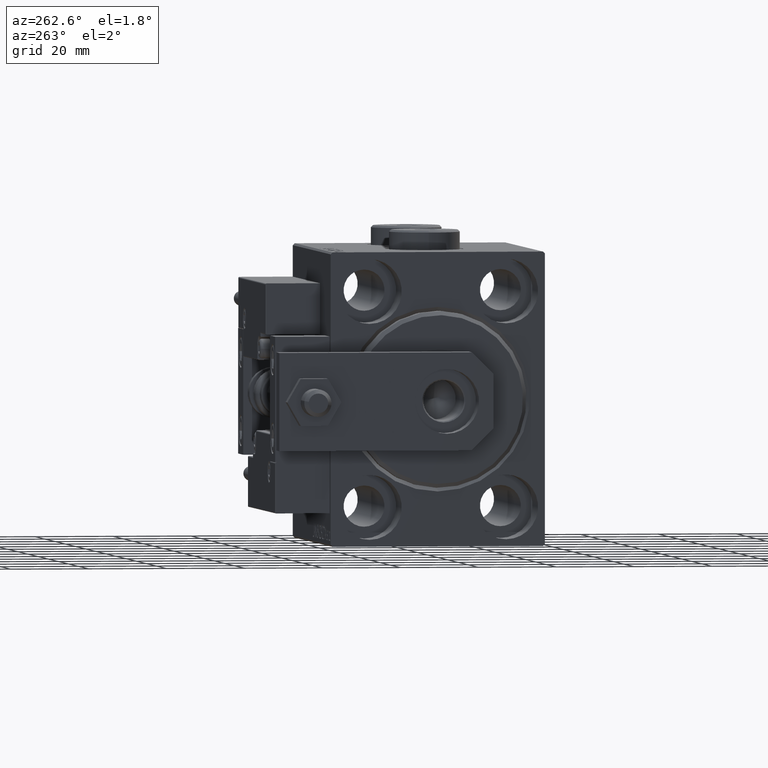
[diagram: clean part render]
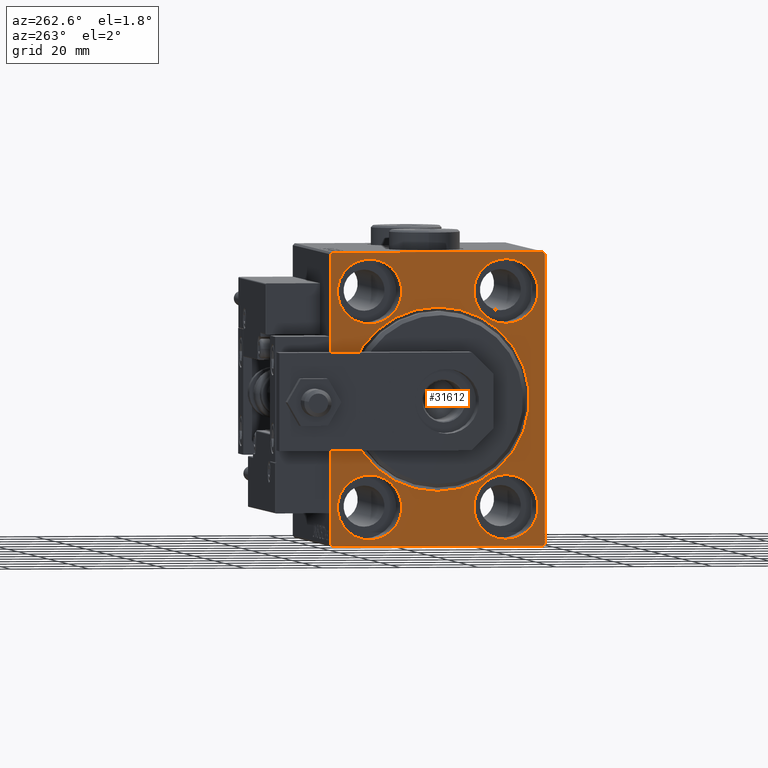
[diagram: same view with one face highlighted and labeled with its STEP entity id]
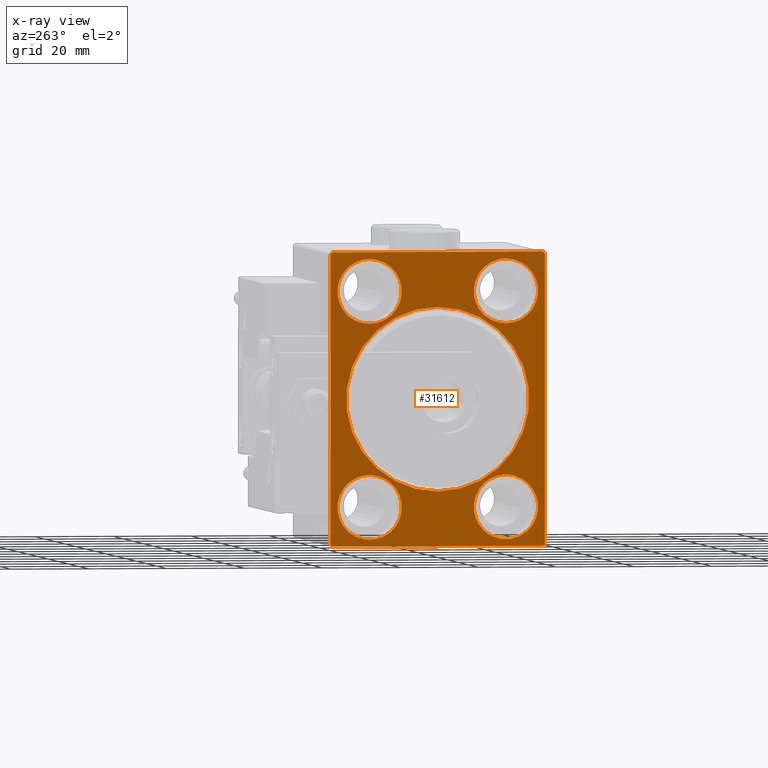
[diagram: x-ray of the same camera — body ghosted, the highlighted face saturated]
A machine part, auxiliary view. The second image highlights one B-rep face of the part: STEP entity #31612.
The next image is the same camera in x-ray: the body ghosted, the highlighted face saturated — about 0% of this face is hidden behind the body in this view.
In plain terms, the highlighted planar face has unit normal (1, 0, 0).
Its self-contained STEP definition (entity closure, byte-faithful):
#124 = LINE ( 'NONE', #39483, #13599 ) ;
#412 = DIRECTION ( 'NONE',  ( 0.000000000000000000, 1.000000000000000000, 0.000000000000000000 ) ) ;
#1491 = CARTESIAN_POINT ( 'NONE',  ( 0.000000000000000000, -27.50000000000000355, -37.00000000000000000 ) ) ;
#1682 = LINE ( 'NONE', #21745, #50702 ) ;
#1851 = AXIS2_PLACEMENT_3D ( 'NONE', #19370, #18625, #11286 ) ;
#2006 = VECTOR ( 'NONE', #26121, 1000.000000000000000 ) ;
#2326 = CARTESIAN_POINT ( 'NONE',  ( 0.000000000000000000, 17.49999999999999645, -35.75000000000000711 ) ) ;
#3172 = CARTESIAN_POINT ( 'NONE',  ( 0.000000000000000000, -17.50000000000000355, -27.50000000000000355 ) ) ;
#4009 = CARTESIAN_POINT ( 'NONE',  ( 0.000000000000000000, -17.50000000000000355, -19.25000000000000355 ) ) ;
#4373 = VERTEX_POINT ( 'NONE', #9779 ) ;
#5127 = EDGE_CURVE ( 'NONE', #46303, #20255, #6580, .T. ) ;
#5385 = ORIENTED_EDGE ( 'NONE', *, *, #6724, .F. ) ;
#5930 = VERTEX_POINT ( 'NONE', #25327 ) ;
#5931 = CARTESIAN_POINT ( 'NONE',  ( 0.000000000000000000, 27.50000000000000355, -37.00000000000000000 ) ) ;
#6079 = CIRCLE ( 'NONE', #45211, 23.50000000000000355 ) ;
#6380 = VECTOR ( 'NONE', #20452, 1000.000000000000000 ) ;
#6390 = EDGE_CURVE ( 'NONE', #4373, #11990, #1682, .T. ) ;
#6580 = CIRCLE ( 'NONE', #26570, 8.250000000000000000 ) ;
#6724 = EDGE_CURVE ( 'NONE', #33801, #5930, #48245, .T. ) ;
#6821 = ORIENTED_EDGE ( 'NONE', *, *, #7648, .T. ) ;
#7300 = EDGE_CURVE ( 'NONE', #20255, #46303, #29932, .T. ) ;
#7648 = EDGE_CURVE ( 'NONE', #39120, #18863, #29132, .T. ) ;
#7668 = LINE ( 'NONE', #16526, #27176 ) ;
#8316 = DIRECTION ( 'NONE',  ( -1.000000000000000000, 0.000000000000000000, 0.000000000000000000 ) ) ;
#9383 = VERTEX_POINT ( 'NONE', #23640 ) ;
#9471 = VERTEX_POINT ( 'NONE', #39279 ) ;
#9532 = VECTOR ( 'NONE', #26782, 1000.000000000000000 ) ;
#9779 = CARTESIAN_POINT ( 'NONE',  ( 0.000000000000000000, -27.00000000000000355, -37.50000000000000000 ) ) ;
#9975 = DIRECTION ( 'NONE',  ( -1.000000000000000000, 0.000000000000000000, 0.000000000000000000 ) ) ;
#10104 = VERTEX_POINT ( 'NONE', #39218 ) ;
#10466 = CARTESIAN_POINT ( 'NONE',  ( 0.000000000000000000, 27.49999999999999645, 37.50000000000000711 ) ) ;
#11098 = AXIS2_PLACEMENT_3D ( 'NONE', #13292, #29191, #17472 ) ;
#11192 = VERTEX_POINT ( 'NONE', #36606 ) ;
#11286 = DIRECTION ( 'NONE',  ( 0.000000000000000000, 0.000000000000000000, -1.000000000000000000 ) ) ;
#11990 = VERTEX_POINT ( 'NONE', #1491 ) ;
#12363 = DIRECTION ( 'NONE',  ( 0.000000000000000000, -9.251858538542970348E-17, 1.000000000000000000 ) ) ;
#12423 = CIRCLE ( 'NONE', #49082, 8.249999999999992895 ) ;
#12442 = AXIS2_PLACEMENT_3D ( 'NONE', #3172, #42806, #50867 ) ;
#12508 = DIRECTION ( 'NONE',  ( 0.000000000000000000, 0.000000000000000000, 1.000000000000000000 ) ) ;
#12993 = ORIENTED_EDGE ( 'NONE', *, *, #5127, .F. ) ;
#13092 = CARTESIAN_POINT ( 'NONE',  ( 0.000000000000000000, -17.49999999999999645, 19.25000000000000000 ) ) ;
#13292 = CARTESIAN_POINT ( 'NONE',  ( 0.000000000000000000, 0.000000000000000000, 0.000000000000000000 ) ) ;
#13599 = VECTOR ( 'NONE', #12363, 1000.000000000000000 ) ;
#13741 = CIRCLE ( 'NONE', #24575, 8.250000000000000000 ) ;
#13790 = ORIENTED_EDGE ( 'NONE', *, *, #35145, .F. ) ;
#13800 = ORIENTED_EDGE ( 'NONE', *, *, #20539, .F. ) ;
#13843 = DIRECTION ( 'NONE',  ( -1.000000000000000000, 0.000000000000000000, 0.000000000000000000 ) ) ;
#14681 = EDGE_LOOP ( 'NONE', ( #32892, #12993 ) ) ;
#14986 = VECTOR ( 'NONE', #42165, 1000.000000000000114 ) ;
#15059 = DIRECTION ( 'NONE',  ( -1.000000000000000000, 0.000000000000000000, 0.000000000000000000 ) ) ;
#15162 = CIRCLE ( 'NONE', #1851, 23.50000000000000355 ) ;
#15533 = LINE ( 'NONE', #18954, #9532 ) ;
#15929 = ORIENTED_EDGE ( 'NONE', *, *, #36550, .F. ) ;
#16164 = CIRCLE ( 'NONE', #22835, 8.249999999999992895 ) ;
#16526 = CARTESIAN_POINT ( 'NONE',  ( 0.000000000000000000, -27.50000000000000355, 37.00000000000001421 ) ) ;
#16563 = EDGE_CURVE ( 'NONE', #17862, #21426, #15162, .T. ) ;
#17200 = ORIENTED_EDGE ( 'NONE', *, *, #16563, .T. ) ;
#17243 = ORIENTED_EDGE ( 'NONE', *, *, #28083, .F. ) ;
#17301 = EDGE_CURVE ( 'NONE', #4373, #18863, #28291, .T. ) ;
#17472 = DIRECTION ( 'NONE',  ( 0.000000000000000000, 0.000000000000000000, -1.000000000000000000 ) ) ;
#17862 = VERTEX_POINT ( 'NONE', #26127 ) ;
#17979 = CARTESIAN_POINT ( 'NONE',  ( 0.000000000000000000, -27.50000000000000355, 37.00000000000001421 ) ) ;
#18031 = LINE ( 'NONE', #10466, #2006 ) ;
#18160 = VERTEX_POINT ( 'NONE', #17979 ) ;
#18591 = CARTESIAN_POINT ( 'NONE',  ( 0.000000000000000000, 17.49999999999999645, -27.50000000000000355 ) ) ;
#18625 = DIRECTION ( 'NONE',  ( 1.000000000000000000, 0.000000000000000000, 0.000000000000000000 ) ) ;
#18665 = CARTESIAN_POINT ( 'NONE',  ( 0.000000000000000000, 27.50000000000000355, -37.00000000000000000 ) ) ;
#18863 = VERTEX_POINT ( 'NONE', #48939 ) ;
#18954 = CARTESIAN_POINT ( 'NONE',  ( 0.000000000000000000, -27.50000000000000355, 37.50000000000000000 ) ) ;
#19370 = CARTESIAN_POINT ( 'NONE',  ( 0.000000000000000000, 0.000000000000000000, 0.000000000000000000 ) ) ;
#19409 = LINE ( 'NONE', #28266, #6380 ) ;
#19474 = CIRCLE ( 'NONE', #23635, 8.250000000000000000 ) ;
#20130 = DIRECTION ( 'NONE',  ( 1.000000000000000000, 0.000000000000000000, 0.000000000000000000 ) ) ;
#20255 = VERTEX_POINT ( 'NONE', #4009 ) ;
#20452 = DIRECTION ( 'NONE',  ( -0.000000000000000000, 0.7071067811865426878, -0.7071067811865524577 ) ) ;
#20539 = EDGE_CURVE ( 'NONE', #28606, #9383, #19474, .T. ) ;
#20907 = CARTESIAN_POINT ( 'NONE',  ( 0.000000000000000000, 17.50000000000000355, 27.49999999999999645 ) ) ;
#21015 = EDGE_CURVE ( 'NONE', #30160, #10104, #16164, .T. ) ;
#21213 = DIRECTION ( 'NONE',  ( 0.000000000000000000, 0.000000000000000000, 1.000000000000000000 ) ) ;
#21426 = VERTEX_POINT ( 'NONE', #50634 ) ;
#21492 = EDGE_CURVE ( 'NONE', #21426, #17862, #6079, .T. ) ;
#21745 = CARTESIAN_POINT ( 'NONE',  ( 0.000000000000000000, -27.00000000000000355, -37.50000000000000000 ) ) ;
#21901 = FACE_OUTER_BOUND ( 'NONE', #50108, .T. ) ;
#22166 = FACE_BOUND ( 'NONE', #49063, .T. ) ;
#22835 = AXIS2_PLACEMENT_3D ( 'NONE', #48451, #8316, #39856 ) ;
#22892 = VERTEX_POINT ( 'NONE', #38756 ) ;
#23635 = AXIS2_PLACEMENT_3D ( 'NONE', #18591, #9975, #34218 ) ;
#23640 = CARTESIAN_POINT ( 'NONE',  ( 0.000000000000000000, 17.49999999999999645, -19.25000000000000355 ) ) ;
#24575 = AXIS2_PLACEMENT_3D ( 'NONE', #47695, #32327, #12508 ) ;
#24818 = AXIS2_PLACEMENT_3D ( 'NONE', #39985, #36338, #21213 ) ;
#25327 = CARTESIAN_POINT ( 'NONE',  ( 0.000000000000000000, 17.50000000000000355, 35.74999999999999289 ) ) ;
#26121 = DIRECTION ( 'NONE',  ( 0.000000000000000000, -1.000000000000000000, -1.261617073437677999E-16 ) ) ;
#26127 = CARTESIAN_POINT ( 'NONE',  ( 0.000000000000000000, 0.000000000000000000, 23.50000000000000355 ) ) ;
#26570 = AXIS2_PLACEMENT_3D ( 'NONE', #30444, #15059, #30951 ) ;
#26782 = DIRECTION ( 'NONE',  ( 0.000000000000000000, 0.000000000000000000, -1.000000000000000000 ) ) ;
#27150 = CARTESIAN_POINT ( 'NONE',  ( 0.000000000000000000, 17.50000000000000355, 19.25000000000000000 ) ) ;
#27176 = VECTOR ( 'NONE', #32425, 1000.000000000000114 ) ;
#27539 = DIRECTION ( 'NONE',  ( -1.000000000000000000, 0.000000000000000000, 0.000000000000000000 ) ) ;
#27703 = VECTOR ( 'NONE', #412, 1000.000000000000000 ) ;
#28083 = EDGE_CURVE ( 'NONE', #39120, #11192, #124, .T. ) ;
#28113 = ORIENTED_EDGE ( 'NONE', *, *, #6390, .T. ) ;
#28266 = CARTESIAN_POINT ( 'NONE',  ( 0.000000000000000000, 27.00000000000001066, 37.50000000000000711 ) ) ;
#28291 = LINE ( 'NONE', #41046, #27703 ) ;
#28452 = DIRECTION ( 'NONE',  ( 0.000000000000000000, 0.000000000000000000, -1.000000000000000000 ) ) ;
#28606 = VERTEX_POINT ( 'NONE', #2326 ) ;
#29132 = LINE ( 'NONE', #5931, #14986 ) ;
#29191 = DIRECTION ( 'NONE',  ( 1.000000000000000000, 0.000000000000000000, 0.000000000000000000 ) ) ;
#29700 = FACE_BOUND ( 'NONE', #47483, .T. ) ;
#29932 = CIRCLE ( 'NONE', #12442, 8.250000000000000000 ) ;
#30160 = VERTEX_POINT ( 'NONE', #13092 ) ;
#30221 = FACE_BOUND ( 'NONE', #14681, .T. ) ;
#30444 = CARTESIAN_POINT ( 'NONE',  ( 0.000000000000000000, -17.50000000000000355, -27.50000000000000355 ) ) ;
#30951 = DIRECTION ( 'NONE',  ( 0.000000000000000000, 0.000000000000000000, 1.000000000000000000 ) ) ;
#31276 = EDGE_LOOP ( 'NONE', ( #37063, #49049 ) ) ;
#31612 = ADVANCED_FACE ( 'NONE', ( #37538, #22166, #45095, #29700, #30221, #21901 ), #46131, .F. ) ;
#31801 = ORIENTED_EDGE ( 'NONE', *, *, #39241, .T. ) ;
#32327 = DIRECTION ( 'NONE',  ( -1.000000000000000000, 0.000000000000000000, 0.000000000000000000 ) ) ;
#32425 = DIRECTION ( 'NONE',  ( -0.000000000000000000, 0.7071067811865474617, 0.7071067811865474617 ) ) ;
#32892 = ORIENTED_EDGE ( 'NONE', *, *, #7300, .F. ) ;
#32915 = EDGE_CURVE ( 'NONE', #22892, #9471, #18031, .T. ) ;
#32920 = ORIENTED_EDGE ( 'NONE', *, *, #21492, .T. ) ;
#33801 = VERTEX_POINT ( 'NONE', #27150 ) ;
#33838 = ORIENTED_EDGE ( 'NONE', *, *, #17301, .F. ) ;
#33972 = CIRCLE ( 'NONE', #24818, 8.249999999999992895 ) ;
#34218 = DIRECTION ( 'NONE',  ( 0.000000000000000000, 0.000000000000000000, 1.000000000000000000 ) ) ;
#35145 = EDGE_CURVE ( 'NONE', #18160, #11990, #15533, .T. ) ;
#35871 = CARTESIAN_POINT ( 'NONE',  ( 0.000000000000000000, -17.49999999999999645, 27.49999999999999645 ) ) ;
#36338 = DIRECTION ( 'NONE',  ( -1.000000000000000000, 0.000000000000000000, 0.000000000000000000 ) ) ;
#36550 = EDGE_CURVE ( 'NONE', #9383, #28606, #13741, .T. ) ;
#36606 = CARTESIAN_POINT ( 'NONE',  ( 0.000000000000000000, 27.49999999999999645, 37.00000000000001421 ) ) ;
#36807 = DIRECTION ( 'NONE',  ( 0.000000000000000000, 0.000000000000000000, 1.000000000000000000 ) ) ;
#37063 = ORIENTED_EDGE ( 'NONE', *, *, #50037, .F. ) ;
#37538 = FACE_BOUND ( 'NONE', #48460, .T. ) ;
#38284 = AXIS2_PLACEMENT_3D ( 'NONE', #20907, #13843, #36807 ) ;
#38756 = CARTESIAN_POINT ( 'NONE',  ( 0.000000000000000000, 27.00000000000001066, 37.50000000000000711 ) ) ;
#39120 = VERTEX_POINT ( 'NONE', #18665 ) ;
#39204 = EDGE_CURVE ( 'NONE', #18160, #9471, #7668, .T. ) ;
#39218 = CARTESIAN_POINT ( 'NONE',  ( 0.000000000000000000, -17.49999999999999645, 35.74999999999999289 ) ) ;
#39241 = EDGE_CURVE ( 'NONE', #22892, #11192, #19409, .T. ) ;
#39279 = CARTESIAN_POINT ( 'NONE',  ( 0.000000000000000000, -27.00000000000001776, 37.50000000000000000 ) ) ;
#39483 = CARTESIAN_POINT ( 'NONE',  ( 0.000000000000000000, 27.50000000000000355, -37.50000000000000000 ) ) ;
#39768 = DIRECTION ( 'NONE',  ( 0.000000000000000000, 0.000000000000000000, 1.000000000000000000 ) ) ;
#39856 = DIRECTION ( 'NONE',  ( 0.000000000000000000, 0.000000000000000000, 1.000000000000000000 ) ) ;
#39893 = ORIENTED_EDGE ( 'NONE', *, *, #46844, .F. ) ;
#39927 = CARTESIAN_POINT ( 'NONE',  ( 0.000000000000000000, 0.000000000000000000, 0.000000000000000000 ) ) ;
#39985 = CARTESIAN_POINT ( 'NONE',  ( 0.000000000000000000, 17.50000000000000355, 27.49999999999999645 ) ) ;
#41046 = CARTESIAN_POINT ( 'NONE',  ( 0.000000000000000000, -27.50000000000000355, -37.50000000000000000 ) ) ;
#42067 = DIRECTION ( 'NONE',  ( -0.000000000000000000, -0.7071067811865474617, 0.7071067811865474617 ) ) ;
#42093 = CARTESIAN_POINT ( 'NONE',  ( 0.000000000000000000, -17.50000000000000355, -35.75000000000000711 ) ) ;
#42165 = DIRECTION ( 'NONE',  ( 0.000000000000000000, -0.7071067811865474617, -0.7071067811865474617 ) ) ;
#42806 = DIRECTION ( 'NONE',  ( -1.000000000000000000, 0.000000000000000000, 0.000000000000000000 ) ) ;
#43037 = ORIENTED_EDGE ( 'NONE', *, *, #39204, .T. ) ;
#43246 = ORIENTED_EDGE ( 'NONE', *, *, #32915, .F. ) ;
#45095 = FACE_BOUND ( 'NONE', #31276, .T. ) ;
#45211 = AXIS2_PLACEMENT_3D ( 'NONE', #39927, #20130, #28452 ) ;
#46131 = PLANE ( 'NONE',  #11098 ) ;
#46303 = VERTEX_POINT ( 'NONE', #42093 ) ;
#46844 = EDGE_CURVE ( 'NONE', #5930, #33801, #33972, .T. ) ;
#47483 = EDGE_LOOP ( 'NONE', ( #39893, #5385 ) ) ;
#47695 = CARTESIAN_POINT ( 'NONE',  ( 0.000000000000000000, 17.49999999999999645, -27.50000000000000355 ) ) ;
#48245 = CIRCLE ( 'NONE', #38284, 8.249999999999992895 ) ;
#48451 = CARTESIAN_POINT ( 'NONE',  ( 0.000000000000000000, -17.49999999999999645, 27.49999999999999645 ) ) ;
#48460 = EDGE_LOOP ( 'NONE', ( #17200, #32920 ) ) ;
#48939 = CARTESIAN_POINT ( 'NONE',  ( 0.000000000000000000, 27.00000000000000355, -37.50000000000000000 ) ) ;
#49049 = ORIENTED_EDGE ( 'NONE', *, *, #21015, .F. ) ;
#49063 = EDGE_LOOP ( 'NONE', ( #15929, #13800 ) ) ;
#49082 = AXIS2_PLACEMENT_3D ( 'NONE', #35871, #27539, #39768 ) ;
#50037 = EDGE_CURVE ( 'NONE', #10104, #30160, #12423, .T. ) ;
#50108 = EDGE_LOOP ( 'NONE', ( #13790, #43037, #43246, #31801, #17243, #6821, #33838, #28113 ) ) ;
#50634 = CARTESIAN_POINT ( 'NONE',  ( 0.000000000000000000, 2.877919977996280715E-15, -23.50000000000000355 ) ) ;
#50702 = VECTOR ( 'NONE', #42067, 1000.000000000000114 ) ;
#50867 = DIRECTION ( 'NONE',  ( 0.000000000000000000, 0.000000000000000000, 1.000000000000000000 ) ) ;